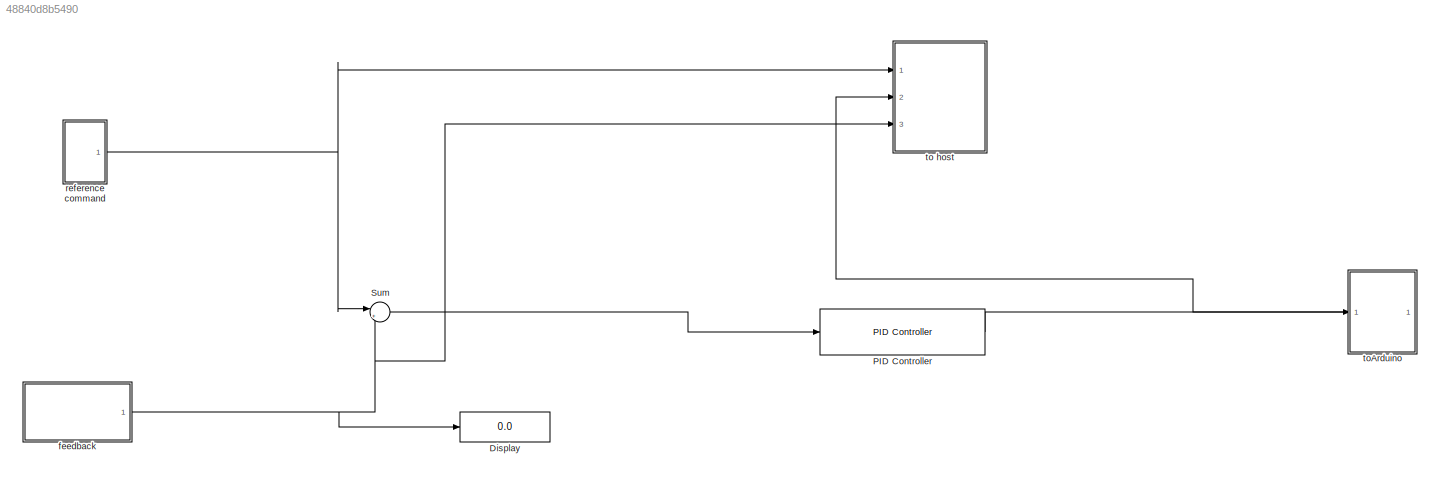
MODEL slx_48840d8b5490
KIND model
CONFIG AbsTol = auto
CONFIG EnableMultiTasking = on
CONFIG FixedStep = 0.01
CONFIG MaxStep = auto
CONFIG MinStep = auto
CONFIG RelTol = 1e-3
CONFIG SampleTimeConstraint = Unconstrained
CONFIG SolverName = FixedStepAuto
CONFIG StartTime = 0.0
CONFIG StopTime = inf
BLOCK [Display] Display
  Decimation = 1
  Ports = [1]
BLOCK [Reference] PID Controller  REF=pid_lib/PID Controller
  Ports = [1, 1]
  SourceBlock = pid_lib/PID Controller
  SourceProductBaseCode = SL
  SourceType = PID 1dof
BLOCK [Sum] Sum
  Inputs = |+-
  Ports = [2, 1]
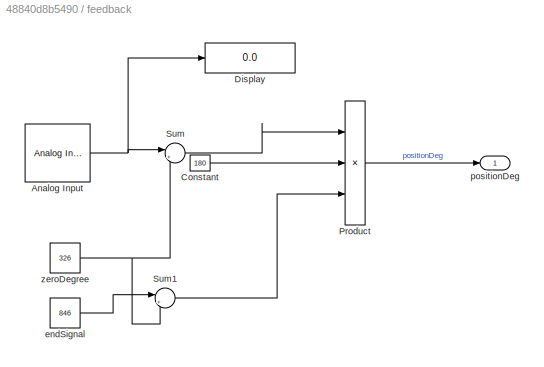
BLOCK [SubSystem] feedback
  Ports = [0, 1]
  RequestExecContextInheritance = off
BLOCK [Reference] feedback/Analog Input  REF=arduinolib/Analog Input
  Ports = [0, 1]
  SourceBlock = arduinolib/Analog Input
  SourceProductBaseCode = ARDUINO
  SourceType = Arduino Analog Input
BLOCK [Constant] feedback/Constant
  Value = 180
BLOCK [Display] feedback/Display
  Decimation = 1
  Ports = [1]
BLOCK [Product] feedback/Product
  Inputs = **/
  Ports = [3, 1]
BLOCK [Sum] feedback/Sum
  Inputs = |+-
  Ports = [2, 1]
BLOCK [Sum] feedback/Sum1
  Inputs = |+-
  Ports = [2, 1]
BLOCK [Constant] feedback/endSignal
  Value = 846
BLOCK [Outport] feedback/positionDeg
BLOCK [Constant] feedback/zeroDegree
  Value = 326
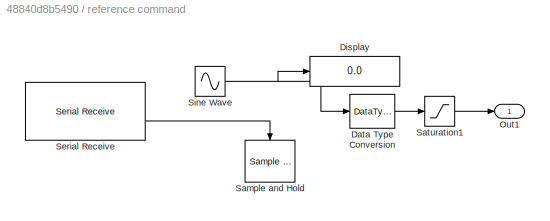
BLOCK [SubSystem] reference command
  Ports = [0, 1]
  RequestExecContextInheritance = off
BLOCK [DataTypeConversion] reference command/Data Type Conversion
  OutDataTypeStr = double
  RndMeth = Floor
  SaturateOnIntegerOverflow = off
BLOCK [Display] reference command/Display
  Decimation = 1
  Ports = [1]
BLOCK [Outport] reference command/Out1
BLOCK [Reference] reference command/Sample and Hold  REF=dspsigops/Sample
and Hold
  Ports = [1, 1, 0, 1]
  SourceBlock = dspsigops/Sample\nand Hold
  SourceProductBaseCode = DS
  SourceType = Sample and Hold
BLOCK [Saturate] reference command/Saturation1
  LowerLimit = 20
  UpperLimit = 165
BLOCK [Reference] reference command/Serial Receive  REF=arduinolib/Serial Receive
  Commented = on
  Ports = [0, 2]
  SourceBlock = arduinolib/Serial Receive
  SourceProductBaseCode = ARDUINO
  SourceType = Arduino Serial Receive
BLOCK [Sin] reference command/Sine Wave
  Amplitude = 45
  Bias = 90
  Frequency = 10
  Ports = [0, 1]
  SampleTime = 0
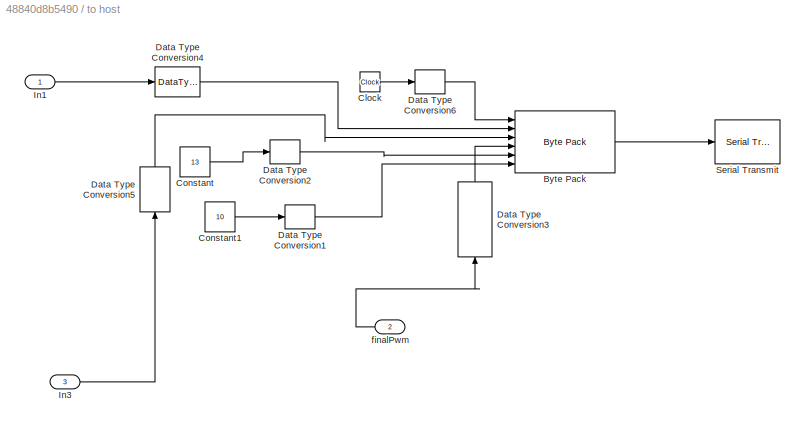
BLOCK [SubSystem] to host
  Ports = [3]
  RequestExecContextInheritance = off
BLOCK [Reference] to host/Byte Pack  REF=svdutilitieslib/Byte Pack
  Ports = [6, 1]
  SourceBlock = svdutilitieslib/Byte Pack
  SourceProductBaseCode = ANDROID,ARDUINO,ML_ARDUINO,ECCORTEXA,ECCORTEXR,SC_BEAGLEBONE_BLUE,EC_FREEDOM_BOARD,EC_FRDM_K64F,INTEL_BLOCKSET,JETSONCPU,MICROBIT,NUCLEO,NVIDIA,PX4AUTOPILOTS,RASPPIIO,STMICRODIS,TIC2000,XILINX_BLOCKSET
  SourceType = Byte pack
BLOCK [Clock] to host/Clock
BLOCK [Constant] to host/Constant
  Value = 13
BLOCK [Constant] to host/Constant1
  Value = 10
BLOCK [DataTypeConversion] to host/Data Type Conversion1
  RndMeth = Floor
  SaturateOnIntegerOverflow = off
BLOCK [DataTypeConversion] to host/Data Type Conversion2
  RndMeth = Floor
  SaturateOnIntegerOverflow = off
BLOCK [DataTypeConversion] to host/Data Type Conversion3
  NameLocation = right
  RndMeth = Floor
  SaturateOnIntegerOverflow = off
BLOCK [DataTypeConversion] to host/Data Type Conversion4
  RndMeth = Floor
  SaturateOnIntegerOverflow = off
BLOCK [DataTypeConversion] to host/Data Type Conversion5
  NameLocation = right
  RndMeth = Floor
  SaturateOnIntegerOverflow = off
BLOCK [DataTypeConversion] to host/Data Type Conversion6
  RndMeth = Floor
  SaturateOnIntegerOverflow = off
BLOCK [Inport] to host/In1
BLOCK [Inport] to host/In3
  Port = 3
BLOCK [Reference] to host/Serial Transmit  REF=arduinolib/Serial Transmit
  Commented = on
  Ports = [1]
  SourceBlock = arduinolib/Serial Transmit
  SourceProductBaseCode = ARDUINO
  SourceType = Arduino Serial Transmit
BLOCK [Inport] to host/finalPwm
  Port = 2
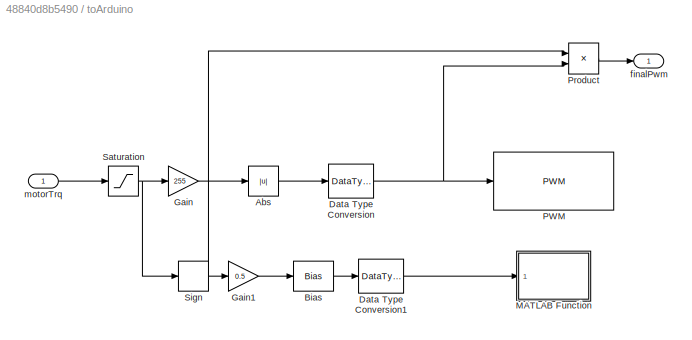
BLOCK [SubSystem] toArduino
  PortSchema = {"entries":[{"content":{"sides":[{"content":{"connectorIds":["Out1","In1"]},"type":"ConnectorPlacement.EquallySpacedRectSide","uuid":"00d106dc-c9fd-4c71-abfc-8846c8674c7f"},{"content":{"connectorIds":[],"side":"RIGHT"},"type":"ConnectorPlacement.EquallySpacedRectSide","uuid":"650a5093-1d9f-4912-81bc-53c75c5aa512"},{"content":{"connectorIds":[],"side":"TOP"},"type":"ConnectorPlacement.EquallySpaced...<+241ch>
  Ports = [1, 1]
  RequestExecContextInheritance = off
BLOCK [Abs] toArduino/Abs
  SaturateOnIntegerOverflow = off
BLOCK [Bias] toArduino/Bias
  Bias = 0.5
  SaturateOnIntegerOverflow = off
BLOCK [DataTypeConversion] toArduino/Data Type Conversion
  RndMeth = Floor
  SaturateOnIntegerOverflow = off
BLOCK [DataTypeConversion] toArduino/Data Type Conversion1
  RndMeth = Floor
  SaturateOnIntegerOverflow = off
BLOCK [Gain] toArduino/Gain
  Gain = 255
BLOCK [Gain] toArduino/Gain1
  Gain = 0.5
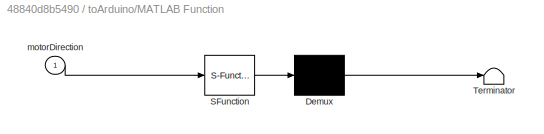
BLOCK [SubSystem] toArduino/MATLAB Function
  ErrorFcn = Stateflow.Translate.translate
  PermitHierarchicalResolution = ExplicitOnly
  Ports = [1]
  RequestExecContextInheritance = off
  SFBlockType = MATLAB Function
  TreatAsAtomicUnit = on
BLOCK [Demux] toArduino/MATLAB Function/ Demux 
  Outputs = 1
  Ports = [1, 1]
BLOCK [S-Function] toArduino/MATLAB Function/ SFunction 
  EnableBusSupport = on
  FunctionName = sf_sfun
  PortCounts = [1 1]
  Ports = [1, 1]
  SFcnIsStateOwnerBlock = off
  SFunctionDeploymentMode = off
  Tag = Stateflow S-Function 2
BLOCK [Terminator] toArduino/MATLAB Function/ Terminator 
BLOCK [Inport] toArduino/MATLAB Function/motorDirection
BLOCK [Reference] toArduino/PWM  REF=arduinolib/PWM
  Ports = [1]
  SourceBlock = arduinolib/PWM
  SourceProductBaseCode = ARDUINO
  SourceType = Arduino PWM
BLOCK [Product] toArduino/Product
  Ports = [2, 1]
BLOCK [Saturate] toArduino/Saturation
  LowerLimit = -1
  UpperLimit = 1
BLOCK [Signum] toArduino/Sign
BLOCK [Outport] toArduino/finalPwm
BLOCK [Inport] toArduino/motorTrq
LINE PID Controller:1 -> toArduino:1
LINE Sum:1 -> PID Controller:1
NET feedback/Analog Input:1 -> feedback/Display:1, feedback/Sum:1
LINE feedback/Constant:1 -> feedback/Product:2
LINE feedback/Product:1 -> feedback/positionDeg:1
LINE feedback/Sum1:1 -> feedback/Product:3
LINE feedback/Sum:1 -> feedback/Product:1
LINE feedback/endSignal:1 -> feedback/Sum1:1
NET feedback/zeroDegree:1 -> feedback/Sum1:2, feedback/Sum:2
NET feedback:1 -> Display:1, Sum:2, to host:3
LINE reference command/Data Type Conversion:1 -> reference command/Saturation1:1
LINE reference command/Saturation1:1 -> reference command/Out1:1
LINE reference command/Serial Receive:2 -> reference command/Sample and Hold:trigger
NET reference command/Sine Wave:1 -> reference command/Data Type Conversion:1, reference command/Display:1
NET reference command:1 -> Sum:1, to host:1
LINE to host/Byte Pack:1 -> to host/Serial Transmit:1
LINE to host/Clock:1 -> to host/Data Type Conversion6:1
LINE to host/Constant1:1 -> to host/Data Type Conversion1:1
LINE to host/Constant:1 -> to host/Data Type Conversion2:1
LINE to host/Data Type Conversion1:1 -> to host/Byte Pack:6
LINE to host/Data Type Conversion2:1 -> to host/Byte Pack:5
LINE to host/Data Type Conversion3:1 -> to host/Byte Pack:4
LINE to host/Data Type Conversion4:1 -> to host/Byte Pack:2
LINE to host/Data Type Conversion5:1 -> to host/Byte Pack:3
LINE to host/Data Type Conversion6:1 -> to host/Byte Pack:1
LINE to host/In1:1 -> to host/Data Type Conversion4:1
LINE to host/In3:1 -> to host/Data Type Conversion5:1
LINE to host/finalPwm:1 -> to host/Data Type Conversion3:1
LINE toArduino/Abs:1 -> toArduino/Data Type Conversion:1
LINE toArduino/Bias:1 -> toArduino/Data Type Conversion1:1
LINE toArduino/Data Type Conversion1:1 -> toArduino/MATLAB Function:1
NET toArduino/Data Type Conversion:1 -> toArduino/PWM:1, toArduino/Product:2
LINE toArduino/Gain1:1 -> toArduino/Bias:1
LINE toArduino/Gain:1 -> toArduino/Abs:1
LINE toArduino/Product:1 -> toArduino/finalPwm:1
NET toArduino/Saturation:1 -> toArduino/Gain:1, toArduino/Sign:1
NET toArduino/Sign:1 -> toArduino/Gain1:1, toArduino/Product:1
LINE toArduino/motorTrq:1 -> toArduino/Saturation:1
LINE toArduino:1 -> to host:2
note: NET lines group one-source signal fan-out (src -> all destinations, sorted); 1:1 wires keep LINE
CHART toArduino/MATLAB Function states=1 transitions=1
  STATE_LABEL 'eML_blk_kernel()'
  STATE_LABEL 'SCRIPT:\nfunction fcn(motorDirection)\npersistent arduinoObj;\ndirectionPin = "A0";\nif (isempty(arduinoObj))\n    arduinoObj = arduino();\n    arduinoObj.configurePin(directionPin , "DigitalOutput");\nend\n\narduinoObj.writeDigitalPin(directionPin, motorDirection)\nend\n'
CHART  states=0 transitions=0
